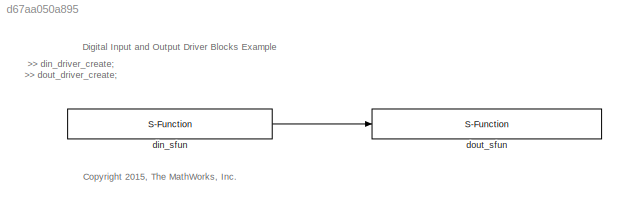
MODEL slx_d67aa050a895
KIND model
BLOCK [S-Function] din_sfun
  FunctionName = din_sfun
  Parameters = SParameter1
  Ports = [0, 1]
BLOCK [S-Function] dout_sfun
  FunctionName = dout_sfun
  Parameters = SParameter1
  Ports = [1]
ANNOTATION (root): >> din_driver_create; >> dout_driver_create;
ANNOTATION (root): <copyright redacted>
ANNOTATION (root): Digital Input and Output Driver Blocks Example
LINE din_sfun:1 -> dout_sfun:1
